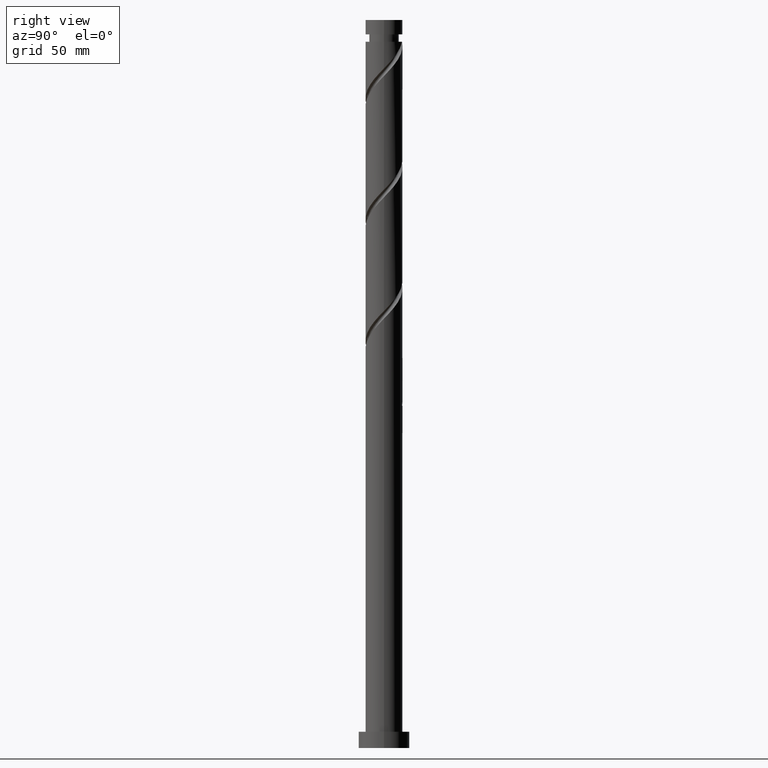
[diagram: clean part render]
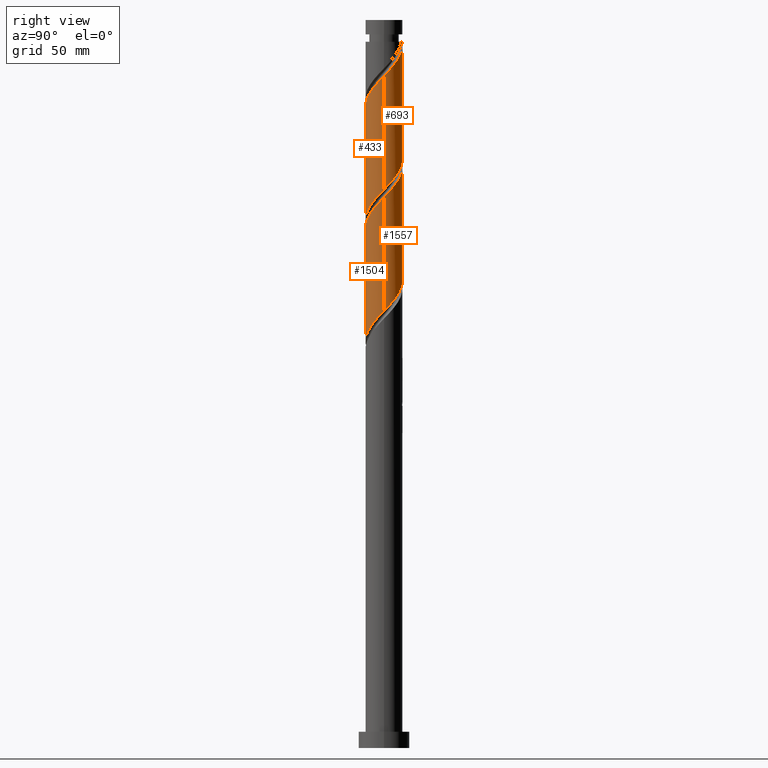
[diagram: same view with one multi-face feature highlighted, each face labeled with its STEP entity id]
A machine part, right view. The highlighted faces form ONE feature: a constant-radius fillet chain: 4 tangent blend faces with common blend radius 8 mm. The faces share edges in the B-rep.
Their STEP definitions:
[1] entity #1504 (Cylinder):
#32 = CARTESIAN_POINT ( 'NONE',  ( 8.000000000000012434, -1.567206219760254689E-15, 238.2947572153500744 ) ) ;
#54 = CARTESIAN_POINT ( 'NONE',  ( -4.835972842340986233, -6.372861733016056185, 170.5942742932561487 ) ) ;
#66 = CARTESIAN_POINT ( 'NONE',  ( 8.000000000000000000, 9.797174393178825657E-16, 315.0000000000000000 ) ) ;
#94 = FACE_OUTER_BOUND ( 'NONE', #1534, .T. ) ;
#107 = CARTESIAN_POINT ( 'NONE',  ( 6.711618193336562399, -4.445972725462998376, 233.4067742932561202 ) ) ;
#142 = CARTESIAN_POINT ( 'NONE',  ( -1.967324187022329918, -7.754330115693885084, 223.0942742932561771 ) ) ;
#146 = CARTESIAN_POINT ( 'NONE',  ( 0.000000000000000000, 0.000000000000000000, 315.0000000000000000 ) ) ;
#188 = CARTESIAN_POINT ( 'NONE',  ( 0.1924984826887007339, -7.997683685553119481, 176.2192742932561487 ) ) ;
#207 = CARTESIAN_POINT ( 'NONE',  ( -7.999999999999996447, -0.09626317733111060260, 162.9941540593872560 ) ) ;
#211 = VECTOR ( 'NONE', #1223, 1000.000000000000000 ) ;
#220 = LINE ( 'NONE', #66, #462 ) ;
#280 = CARTESIAN_POINT ( 'NONE',  ( -4.445972725462998376, -6.711618193336562399, 220.2817742932561487 ) ) ;
#281 = ORIENTED_EDGE ( 'NONE', *, *, #410, .F. ) ;
#320 = LINE ( 'NONE', #1484, #211 ) ;
#337 = CARTESIAN_POINT ( 'NONE',  ( 3.643500041788252375, -7.122142054571010128, 179.9692742932561771 ) ) ;
#348 = CARTESIAN_POINT ( 'NONE',  ( -3.296629761746307619, -7.289185977457871779, 172.4692742932561202 ) ) ;
#357 = CARTESIAN_POINT ( 'NONE',  ( -7.975994315582275007, -1.093621015931126372, 164.0317742932560918 ) ) ;
#410 = EDGE_CURVE ( 'NONE', #1915, #1749, #1872, .T. ) ;
#427 = CARTESIAN_POINT ( 'NONE',  ( -5.136975590527704583, -6.132820051356697277, 219.3442742932561771 ) ) ;
#446 = CARTESIAN_POINT ( 'NONE',  ( 8.000000000000012434, -1.567206219760254689E-15, 238.2947572153500744 ) ) ;
#455 =( BOUNDED_CURVE ( )  B_SPLINE_CURVE ( 2, ( #1416, #513, #812, #937, #783, #675, #1406, #1865, #1665, #1695, #337, #1240, #928, #1520, #188, #634, #1229, #1823, #348, #792, #54, #1396, #1834, #501, #946, #1093, #1684, #357, #1538, #207, #739 ),
 .UNSPECIFIED., .F., .T. ) 
 B_SPLINE_CURVE_WITH_KNOTS ( ( 3, 2, 2, 2, 2, 2, 2, 2, 2, 2, 2, 2, 2, 2, 2, 3 ),
 ( 0.8045303401299221946, 0.8125000000000000000, 0.8214285714285713969, 0.8303571428571429047, 0.8392857142857143016, 0.8482142857142856984, 0.8571428571428570953, 0.8660714285714286031, 0.8750000000000000000, 0.8839285714285713969, 0.8928571428571429047, 0.9017857142857143016, 0.9107142857142856984, 0.9196428571428570953, 0.9285714285714286031, 0.9295303401299221946 ),
 .UNSPECIFIED. ) 
 CURVE ( )  GEOMETRIC_REPRESENTATION_ITEM ( )  RATIONAL_B_SPLINE_CURVE ( ( 0.9079949616361914222, 0.9039886423360548040, 0.9090909090909213841, 0.9033747362665963676, 0.9090909090909213841, 0.9033747362665963676, 0.9090909090909213841, 0.9033747362665963676, 0.9090909090909213841, 0.9033747362665963676, 0.9090909090909213841, 0.9033747362665963676, 0.9090909090909213841, 0.9033747362665963676, 0.9090909090909213841, 0.9033747362665963676, 0.9090909090909213841, 0.9033747362665963676, 0.9090909090909213841, 0.9033747362665963676, 0.9090909090909213841, 0.9033747362665963676, 0.9090909090909213841, 0.9033747362665963676, 0.9090909090909213841, 0.9033747362665963676, 0.9090909090909213841, 0.9033747362665963676, 0.9090909090909213841, 0.9084770030214630587, 0.9079949616361914222 ) ) 
 REPRESENTATION_ITEM ( '' )  );
#462 = VECTOR ( 'NONE', #643, 1000.000000000000000 ) ;
#485 = CARTESIAN_POINT ( 'NONE',  ( 8.000000000000012434, -0.09626317733112546571, 238.1943945271249561 ) ) ;
#501 = CARTESIAN_POINT ( 'NONE',  ( -6.711618193336550853, -4.445972725462985942, 167.7817742932561202 ) ) ;
#513 = CARTESIAN_POINT ( 'NONE',  ( 7.999999999999994671, -0.8040302522073838887, 188.3055202921985369 ) ) ;
#554 = CARTESIAN_POINT ( 'NONE',  ( -8.000000000000012434, 3.432927909951034550E-16, 212.0447572153501028 ) ) ;
#563 = CARTESIAN_POINT ( 'NONE',  ( 7.532665915805486279, -2.841027358113529022, 235.2817742932561487 ) ) ;
#578 = CARTESIAN_POINT ( 'NONE',  ( 3.296629761746312060, -7.289185977457886878, 228.7192742932561202 ) ) ;
#593 = DIRECTION ( 'NONE',  ( -0.000000000000000000, -0.000000000000000000, -1.000000000000000000 ) ) ;
#600 = VERTEX_POINT ( 'NONE', #1639 ) ;
#610 = VERTEX_POINT ( 'NONE', #1667 ) ;
#618 = CARTESIAN_POINT ( 'NONE',  ( 7.997683685553133692, -0.1924984826887050360, 238.0942742932561487 ) ) ;
#634 = CARTESIAN_POINT ( 'NONE',  ( -0.7086240505537245715, -8.019373055523965732, 175.2817742932560918 ) ) ;
#636 = EDGE_CURVE ( 'NONE', #1915, #610, #320, .T. ) ;
#643 = DIRECTION ( 'NONE',  ( -0.000000000000000000, -0.000000000000000000, -1.000000000000000000 ) ) ;
#675 = CARTESIAN_POINT ( 'NONE',  ( 6.917745010439713127, -4.117923775305151857, 184.6567742932562055 ) ) ;
#701 = CARTESIAN_POINT ( 'NONE',  ( -6.917745010439726450, -4.117923775305157186, 216.5317742932562624 ) ) ;
#708 = CARTESIAN_POINT ( 'NONE',  ( 6.132820051356695501, -5.136975590527704583, 232.4692742932561487 ) ) ;
#719 = ORIENTED_EDGE ( 'NONE', *, *, #636, .T. ) ;
#734 = CARTESIAN_POINT ( 'NONE',  ( 4.117923775305156298, -6.917745010439726450, 229.6567742932561771 ) ) ;
#739 = CARTESIAN_POINT ( 'NONE',  ( -7.999999999999998224, 1.895573237233846972E-15, 162.8937913711621661 ) ) ;
#783 = CARTESIAN_POINT ( 'NONE',  ( 7.289185977457871779, -3.296629761746308507, 185.5942742932561202 ) ) ;
#792 = CARTESIAN_POINT ( 'NONE',  ( -4.117923775305151857, -6.917745010439714015, 171.5317742932561202 ) ) ;
#812 = CARTESIAN_POINT ( 'NONE',  ( 7.839999999999999858, -1.591979899370595364, 187.4692742932561771 ) ) ;
#871 = CARTESIAN_POINT ( 'NONE',  ( -7.660626944476046418, -2.475335748187467377, 214.6567742932561487 ) ) ;
#897 = CARTESIAN_POINT ( 'NONE',  ( -8.000000000000012434, 3.432927909951034550E-16, 212.0447572153501028 ) ) ;
#928 = CARTESIAN_POINT ( 'NONE',  ( 1.967324187022322812, -7.754330115693871761, 178.0942742932561771 ) ) ;
#930 = CARTESIAN_POINT ( 'NONE',  ( 7.975994315582287442, -1.093621015931131701, 237.1567742932561771 ) ) ;
#937 = CARTESIAN_POINT ( 'NONE',  ( 7.660626944476032207, -2.475335748187465601, 186.5317742932560350 ) ) ;
#946 = CARTESIAN_POINT ( 'NONE',  ( -7.122142054571010128, -3.643500041788253707, 166.8442742932561487 ) ) ;
#1006 = CARTESIAN_POINT ( 'NONE',  ( -7.289185977457886878, -3.296629761746312948, 215.5942742932562055 ) ) ;
#1029 = CYLINDRICAL_SURFACE ( 'NONE', #1798, 8.000000000000000000 ) ;
#1093 = CARTESIAN_POINT ( 'NONE',  ( -7.532665915805471180, -2.841027358113519696, 165.9067742932561771 ) ) ;
#1140 = CARTESIAN_POINT ( 'NONE',  ( -2.841027358113529022, -7.532665915805486279, 222.1567742932561771 ) ) ;
#1159 = CARTESIAN_POINT ( 'NONE',  ( 7.754330115693885084, -1.967324187022330140, 236.2192742932561487 ) ) ;
#1166 = CARTESIAN_POINT ( 'NONE',  ( -6.372861733016070396, -4.835972842340994227, 217.4692742932561202 ) ) ;
#1174 = CARTESIAN_POINT ( 'NONE',  ( 4.835972842340994227, -6.372861733016071284, 230.5942742932561487 ) ) ;
#1190 = DIRECTION ( 'NONE',  ( -1.000000000000000000, 0.000000000000000000, 0.000000000000000000 ) ) ;
#1223 = DIRECTION ( 'NONE',  ( -0.000000000000000000, -0.000000000000000000, -1.000000000000000000 ) ) ;
#1229 = CARTESIAN_POINT ( 'NONE',  ( -1.591979899370594920, -7.839999999999999858, 174.3442742932561202 ) ) ;
#1238 = EDGE_CURVE ( 'NONE', #1749, #600, #220, .T. ) ;
#1240 = CARTESIAN_POINT ( 'NONE',  ( 2.841027358113519696, -7.532665915805471180, 179.0317742932561487 ) ) ;
#1287 = EDGE_CURVE ( 'NONE', #600, #610, #455, .T. ) ;
#1301 = CARTESIAN_POINT ( 'NONE',  ( 7.122142054571023451, -3.643500041788263033, 234.3442742932561487 ) ) ;
#1396 = CARTESIAN_POINT ( 'NONE',  ( -5.554021909376823274, -5.827978455592401019, 169.6567742932561487 ) ) ;
#1406 = CARTESIAN_POINT ( 'NONE',  ( 6.372861733016056185, -4.835972842340986233, 183.7192742932560918 ) ) ;
#1416 = CARTESIAN_POINT ( 'NONE',  ( 7.999999999999998224, -2.820971195568480725E-15, 189.1437913711621377 ) ) ;
#1438 = CARTESIAN_POINT ( 'NONE',  ( 2.475335748187466489, -7.660626944476046418, 227.7817742932561202 ) ) ;
#1446 = CARTESIAN_POINT ( 'NONE',  ( 0.7086240505537224621, -8.019373055523979943, 225.9067742932562055 ) ) ;
#1474 = CARTESIAN_POINT ( 'NONE',  ( -8.000000000000012434, -0.8040302522073711211, 212.8830282943137036 ) ) ;
#1484 = CARTESIAN_POINT ( 'NONE',  ( -8.000000000000000000, 0.000000000000000000, 315.0000000000000000 ) ) ;
#1504 = ADVANCED_FACE ( 'NONE', ( #94 ), #1029, .T. ) ;
#1520 = CARTESIAN_POINT ( 'NONE',  ( 1.093621015931125706, -7.975994315582275007, 177.1567742932561487 ) ) ;
#1534 = EDGE_LOOP ( 'NONE', ( #1839, #281, #719, #1869 ) ) ;
#1538 = CARTESIAN_POINT ( 'NONE',  ( -7.997683685553119481, -0.1924984826887011502, 163.0942742932561487 ) ) ;
#1583 = CARTESIAN_POINT ( 'NONE',  ( -7.840000000000014069, -1.591979899370595142, 213.7192742932561771 ) ) ;
#1592 = CARTESIAN_POINT ( 'NONE',  ( -0.1924984826887041756, -7.997683685553133692, 224.9692742932561487 ) ) ;
#1639 = CARTESIAN_POINT ( 'NONE',  ( 7.999999999999998224, -2.820971195568480725E-15, 189.1437913711621661 ) ) ;
#1665 = CARTESIAN_POINT ( 'NONE',  ( 5.136975590527694813, -6.132820051356686619, 181.8442742932561202 ) ) ;
#1667 = CARTESIAN_POINT ( 'NONE',  ( -7.999999999999998224, 1.895573237233846972E-15, 162.8937913711621661 ) ) ;
#1684 = CARTESIAN_POINT ( 'NONE',  ( -7.754330115693871761, -1.967324187022322812, 164.9692742932561487 ) ) ;
#1695 = CARTESIAN_POINT ( 'NONE',  ( 4.445972725462985942, -6.711618193336553517, 180.9067742932561202 ) ) ;
#1739 = CARTESIAN_POINT ( 'NONE',  ( 1.591979899370594698, -7.840000000000014069, 226.8442742932562055 ) ) ;
#1749 = VERTEX_POINT ( 'NONE', #32 ) ;
#1755 = CARTESIAN_POINT ( 'NONE',  ( -5.827978455592415230, -5.554021909376832156, 218.4067742932560634 ) ) ;
#1763 = CARTESIAN_POINT ( 'NONE',  ( -3.643500041788262589, -7.122142054571023451, 221.2192742932561771 ) ) ;
#1798 = AXIS2_PLACEMENT_3D ( 'NONE', #146, #593, #1190 ) ;
#1823 = CARTESIAN_POINT ( 'NONE',  ( -2.475335748187465157, -7.660626944476032207, 173.4067742932561771 ) ) ;
#1834 = CARTESIAN_POINT ( 'NONE',  ( -6.132820051356685731, -5.136975590527694813, 168.7192742932561202 ) ) ;
#1839 = ORIENTED_EDGE ( 'NONE', *, *, #1238, .F. ) ;
#1865 = CARTESIAN_POINT ( 'NONE',  ( 5.827978455592401019, -5.554021909376823274, 182.7817742932561202 ) ) ;
#1869 = ORIENTED_EDGE ( 'NONE', *, *, #1287, .F. ) ;
#1872 =( BOUNDED_CURVE ( )  B_SPLINE_CURVE ( 2, ( #554, #1474, #1583, #871, #1006, #701, #1166, #1755, #427, #280, #1763, #1140, #142, #1914, #1592, #1446, #1739, #1438, #578, #734, #1174, #1879, #708, #107, #1301, #563, #1159, #930, #618, #485, #446 ),
 .UNSPECIFIED., .F., .T. ) 
 B_SPLINE_CURVE_WITH_KNOTS ( ( 3, 2, 2, 2, 2, 2, 2, 2, 2, 2, 2, 2, 2, 2, 2, 3 ),
 ( 0.3045303401299220836, 0.3125000000000000000, 0.3214285714285713969, 0.3303571428571429047, 0.3392857142857143016, 0.3482142857142856984, 0.3571428571428570953, 0.3660714285714286031, 0.3750000000000000000, 0.3839285714285713969, 0.3928571428571429047, 0.4017857142857143016, 0.4107142857142856984, 0.4196428571428570953, 0.4285714285714286031, 0.4295303401299220836 ),
 .UNSPECIFIED. ) 
 CURVE ( )  GEOMETRIC_REPRESENTATION_ITEM ( )  RATIONAL_B_SPLINE_CURVE ( ( 0.9079949616361987497, 0.9039886423360619094, 0.9090909090909286006, 0.9033747362666035841, 0.9090909090909286006, 0.9033747362666035841, 0.9090909090909286006, 0.9033747362666035841, 0.9090909090909286006, 0.9033747362666035841, 0.9090909090909286006, 0.9033747362666035841, 0.9090909090909286006, 0.9033747362666035841, 0.9090909090909286006, 0.9033747362666035841, 0.9090909090909286006, 0.9033747362666035841, 0.9090909090909286006, 0.9033747362666035841, 0.9090909090909286006, 0.9033747362666035841, 0.9090909090909286006, 0.9033747362666035841, 0.9090909090909286006, 0.9033747362666035841, 0.9090909090909286006, 0.9033747362666035841, 0.9090909090909286006, 0.9084770030214703862, 0.9079949616361987497 ) ) 
 REPRESENTATION_ITEM ( '' )  );
#1879 = CARTESIAN_POINT ( 'NONE',  ( 5.554021909376832156, -5.827978455592415230, 231.5317742932561771 ) ) ;
#1914 = CARTESIAN_POINT ( 'NONE',  ( -1.093621015931131257, -7.975994315582287442, 224.0317742932561487 ) ) ;
#1915 = VERTEX_POINT ( 'NONE', #897 ) ;
[2] entity #1557 (Cylinder):
#6 = EDGE_CURVE ( 'NONE', #579, #979, #502, .T. ) ;
#21 = CARTESIAN_POINT ( 'NONE',  ( 4.117923775305152745, 6.917745010439713127, 197.7817742932561771 ) ) ;
#32 = CARTESIAN_POINT ( 'NONE',  ( 8.000000000000012434, -1.567206219760254689E-15, 238.2947572153500744 ) ) ;
#66 = CARTESIAN_POINT ( 'NONE',  ( 8.000000000000000000, 9.797174393178825657E-16, 315.0000000000000000 ) ) ;
#97 = CARTESIAN_POINT ( 'NONE',  ( -0.7086240505537219070, 8.019373055523979943, 252.1567742932561202 ) ) ;
#106 = CARTESIAN_POINT ( 'NONE',  ( 7.289185977457886878, 3.296629761746312060, 241.8442742932561202 ) ) ;
#124 = CARTESIAN_POINT ( 'NONE',  ( 6.917745010439728226, 4.117923775305156298, 242.7817742932561771 ) ) ;
#220 = LINE ( 'NONE', #66, #462 ) ;
#259 = CARTESIAN_POINT ( 'NONE',  ( -4.835972842340994227, 6.372861733016070396, 256.8442742932562055 ) ) ;
#268 = CARTESIAN_POINT ( 'NONE',  ( 1.093621015931132368, 7.975994315582287442, 250.2817742932562055 ) ) ;
#288 = CARTESIAN_POINT ( 'NONE',  ( 6.711618193336551741, 4.445972725462985053, 194.0317742932561487 ) ) ;
#319 = CARTESIAN_POINT ( 'NONE',  ( -7.999999999999998224, 1.895573237233846972E-15, 215.3937913711621377 ) ) ;
#328 = CARTESIAN_POINT ( 'NONE',  ( -1.967324187022324145, 7.754330115693871761, 204.3442742932561202 ) ) ;
#399 = CARTESIAN_POINT ( 'NONE',  ( 3.643500041788263033, 7.122142054571023451, 247.4692742932561771 ) ) ;
#436 = CARTESIAN_POINT ( 'NONE',  ( -7.975994315582287442, 1.093621015931130813, 263.4067742932561487 ) ) ;
#462 = VECTOR ( 'NONE', #643, 1000.000000000000000 ) ;
#464 = CARTESIAN_POINT ( 'NONE',  ( 1.591979899370595808, 7.839999999999999858, 200.5942742932561202 ) ) ;
#472 = CARTESIAN_POINT ( 'NONE',  ( 7.532665915805471180, 2.841027358113518808, 192.1567742932561202 ) ) ;
#483 = CARTESIAN_POINT ( 'NONE',  ( 7.122142054571010128, 3.643500041788252375, 193.0942742932562055 ) ) ;
#502 = LINE ( 'NONE', #1666, #1638 ) ;
#537 = ORIENTED_EDGE ( 'NONE', *, *, #6, .F. ) ;
#544 = CARTESIAN_POINT ( 'NONE',  ( -8.000000000000012434, 1.537354672717202172E-15, 264.5447572153501596 ) ) ;
#556 = ORIENTED_EDGE ( 'NONE', *, *, #1238, .T. ) ;
#562 = CARTESIAN_POINT ( 'NONE',  ( -7.754330115693885972, 1.967324187022329030, 262.4692742932561487 ) ) ;
#569 = CARTESIAN_POINT ( 'NONE',  ( -6.132820051356697277, 5.136975590527704583, 258.7192742932561487 ) ) ;
#579 = VERTEX_POINT ( 'NONE', #1337 ) ;
#585 = AXIS2_PLACEMENT_3D ( 'NONE', #1340, #1717, #687 ) ;
#600 = VERTEX_POINT ( 'NONE', #1639 ) ;
#625 = CARTESIAN_POINT ( 'NONE',  ( -5.136975590527696589, 6.132820051356685731, 208.0942742932561202 ) ) ;
#643 = DIRECTION ( 'NONE',  ( -0.000000000000000000, -0.000000000000000000, -1.000000000000000000 ) ) ;
#687 = DIRECTION ( 'NONE',  ( -1.000000000000000000, 0.000000000000000000, 0.000000000000000000 ) ) ;
#689 = CARTESIAN_POINT ( 'NONE',  ( 1.967324187022330584, 7.754330115693885972, 249.3442742932562055 ) ) ;
#700 = CARTESIAN_POINT ( 'NONE',  ( -4.117923775305158074, 6.917745010439726450, 255.9067742932561487 ) ) ;
#707 = CARTESIAN_POINT ( 'NONE',  ( -3.296629761746312948, 7.289185977457886878, 254.9692742932561771 ) ) ;
#717 = CARTESIAN_POINT ( 'NONE',  ( 6.372861733016072172, 4.835972842340994227, 243.7192742932561202 ) ) ;
#761 = CARTESIAN_POINT ( 'NONE',  ( -7.999999999999994671, 0.8040302522073827785, 214.5555202921985938 ) ) ;
#772 = CARTESIAN_POINT ( 'NONE',  ( -1.093621015931127038, 7.975994315582275007, 203.4067742932561487 ) ) ;
#833 = CARTESIAN_POINT ( 'NONE',  ( 7.660626944476046418, 2.475335748187466489, 240.9067742932561771 ) ) ;
#853 = CARTESIAN_POINT ( 'NONE',  ( -5.554021909376833932, 5.827978455592415230, 257.7817742932562055 ) ) ;
#878 = CARTESIAN_POINT ( 'NONE',  ( 4.835972842340988009, 6.372861733016056185, 196.8442742932561202 ) ) ;
#900 = CARTESIAN_POINT ( 'NONE',  ( -6.917745010439714015, 4.117923775305150080, 210.9067742932561202 ) ) ;
#909 = CARTESIAN_POINT ( 'NONE',  ( 2.475335748187466489, 7.660626944476032207, 199.6567742932561202 ) ) ;
#917 = CARTESIAN_POINT ( 'NONE',  ( 3.296629761746308951, 7.289185977457870891, 198.7192742932560918 ) ) ;
#979 = VERTEX_POINT ( 'NONE', #1005 ) ;
#1005 = CARTESIAN_POINT ( 'NONE',  ( -7.999999999999998224, 1.895573237233846972E-15, 215.3937913711621377 ) ) ;
#1009 = EDGE_CURVE ( 'NONE', #1749, #579, #1372, .T. ) ;
#1024 = CARTESIAN_POINT ( 'NONE',  ( -7.532665915805486279, 2.841027358113528578, 261.5317742932561487 ) ) ;
#1035 = CARTESIAN_POINT ( 'NONE',  ( 7.999999999999996447, 0.09626317733110972830, 189.2441540593872560 ) ) ;
#1044 = CARTESIAN_POINT ( 'NONE',  ( -2.841027358113521029, 7.532665915805471180, 205.2817742932561487 ) ) ;
#1055 = CARTESIAN_POINT ( 'NONE',  ( 5.554021909376823274, 5.827978455592400131, 195.9067742932561487 ) ) ;
#1058 = EDGE_CURVE ( 'NONE', #979, #600, #1300, .T. ) ;
#1064 = CARTESIAN_POINT ( 'NONE',  ( 7.999999999999998224, -2.820971195568480725E-15, 189.1437913711621377 ) ) ;
#1136 = FACE_OUTER_BOUND ( 'NONE', #1701, .T. ) ;
#1138 = CARTESIAN_POINT ( 'NONE',  ( -1.591979899370594032, 7.840000000000014069, 253.0942742932562055 ) ) ;
#1158 = CARTESIAN_POINT ( 'NONE',  ( 5.827978455592415230, 5.554021909376831267, 244.6567742932561487 ) ) ;
#1173 = CARTESIAN_POINT ( 'NONE',  ( 2.841027358113530799, 7.532665915805486279, 248.4067742932561487 ) ) ;
#1185 = CARTESIAN_POINT ( 'NONE',  ( -7.289185977457871779, 3.296629761746307619, 211.8442742932561487 ) ) ;
#1194 = CARTESIAN_POINT ( 'NONE',  ( -7.660626944476032207, 2.475335748187464713, 212.7817742932561487 ) ) ;
#1220 = CARTESIAN_POINT ( 'NONE',  ( 6.132820051356686619, 5.136975590527694813, 194.9692742932561487 ) ) ;
#1238 = EDGE_CURVE ( 'NONE', #1749, #600, #220, .T. ) ;
#1254 = ORIENTED_EDGE ( 'NONE', *, *, #1058, .F. ) ;
#1281 = CARTESIAN_POINT ( 'NONE',  ( 0.1924984826887057021, 7.997683685553133692, 251.2192742932561771 ) ) ;
#1290 = CARTESIAN_POINT ( 'NONE',  ( -7.997683685553133692, 0.1924984826887037315, 264.3442742932562624 ) ) ;
#1300 =( BOUNDED_CURVE ( )  B_SPLINE_CURVE ( 2, ( #319, #761, #1510, #1194, #1185, #900, #1345, #1365, #625, #1796, #1473, #1044, #328, #772, #1806, #1627, #464, #909, #917, #21, #878, #1055, #1220, #288, #483, #472, #1336, #1502, #1618, #1035, #1064 ),
 .UNSPECIFIED., .F., .T. ) 
 B_SPLINE_CURVE_WITH_KNOTS ( ( 3, 2, 2, 2, 2, 2, 2, 2, 2, 2, 2, 2, 2, 2, 2, 3 ),
 ( 0.6795303401299221946, 0.6875000000000000000, 0.6964285714285713969, 0.7053571428571429047, 0.7142857142857143016, 0.7232142857142856984, 0.7321428571428570953, 0.7410714285714286031, 0.7500000000000000000, 0.7589285714285713969, 0.7678571428571429047, 0.7767857142857143016, 0.7857142857142856984, 0.7946428571428570953, 0.8035714285714286031, 0.8045303401299221946 ),
 .UNSPECIFIED. ) 
 CURVE ( )  GEOMETRIC_REPRESENTATION_ITEM ( )  RATIONAL_B_SPLINE_CURVE ( ( 0.9079949616361914222, 0.9039886423360548040, 0.9090909090909213841, 0.9033747362665963676, 0.9090909090909213841, 0.9033747362665963676, 0.9090909090909213841, 0.9033747362665963676, 0.9090909090909213841, 0.9033747362665963676, 0.9090909090909213841, 0.9033747362665963676, 0.9090909090909213841, 0.9033747362665963676, 0.9090909090909213841, 0.9033747362665963676, 0.9090909090909213841, 0.9033747362665963676, 0.9090909090909213841, 0.9033747362665963676, 0.9090909090909213841, 0.9033747362665963676, 0.9090909090909213841, 0.9033747362665963676, 0.9090909090909213841, 0.9033747362665963676, 0.9090909090909213841, 0.9033747362665963676, 0.9090909090909213841, 0.9084770030214630587, 0.9079949616361914222 ) ) 
 REPRESENTATION_ITEM ( '' )  );
#1316 = CARTESIAN_POINT ( 'NONE',  ( 8.000000000000012434, -1.567206219760254689E-15, 238.2947572153500744 ) ) ;
#1336 = CARTESIAN_POINT ( 'NONE',  ( 7.754330115693871761, 1.967324187022321924, 191.2192742932561771 ) ) ;
#1337 = CARTESIAN_POINT ( 'NONE',  ( -8.000000000000012434, 1.537354672717202172E-15, 264.5447572153501596 ) ) ;
#1340 = CARTESIAN_POINT ( 'NONE',  ( 0.000000000000000000, 0.000000000000000000, 315.0000000000000000 ) ) ;
#1345 = CARTESIAN_POINT ( 'NONE',  ( -6.372861733016056185, 4.835972842340986233, 209.9692742932560634 ) ) ;
#1365 = CARTESIAN_POINT ( 'NONE',  ( -5.827978455592401019, 5.554021909376823274, 209.0317742932561771 ) ) ;
#1372 =( BOUNDED_CURVE ( )  B_SPLINE_CURVE ( 2, ( #1316, #1738, #1455, #833, #106, #124, #717, #1158, #1591, #1437, #399, #1173, #689, #268, #1281, #97, #1138, #1904, #707, #700, #259, #853, #569, #1761, #1600, #1024, #562, #436, #1290, #1582, #544 ),
 .UNSPECIFIED., .F., .T. ) 
 B_SPLINE_CURVE_WITH_KNOTS ( ( 3, 2, 2, 2, 2, 2, 2, 2, 2, 2, 2, 2, 2, 2, 2, 3 ),
 ( 0.4295303401299220836, 0.4375000000000000000, 0.4464285714285713969, 0.4553571428571429047, 0.4642857142857143016, 0.4732142857142856984, 0.4821428571428570953, 0.4910714285714286031, 0.5000000000000000000, 0.5089285714285713969, 0.5178571428571427937, 0.5267857142857143016, 0.5357142857142856984, 0.5446428571428572063, 0.5535714285714286031, 0.5545303401299220836 ),
 .UNSPECIFIED. ) 
 CURVE ( )  GEOMETRIC_REPRESENTATION_ITEM ( )  RATIONAL_B_SPLINE_CURVE ( ( 0.9079949616361987497, 0.9039886423360619094, 0.9090909090909286006, 0.9033747362666035841, 0.9090909090909286006, 0.9033747362666035841, 0.9090909090909286006, 0.9033747362666035841, 0.9090909090909286006, 0.9033747362666035841, 0.9090909090909286006, 0.9033747362666035841, 0.9090909090909286006, 0.9033747362666035841, 0.9090909090909286006, 0.9033747362666035841, 0.9090909090909286006, 0.9033747362666035841, 0.9090909090909286006, 0.9033747362666035841, 0.9090909090909286006, 0.9033747362666035841, 0.9090909090909286006, 0.9033747362666035841, 0.9090909090909286006, 0.9033747362666035841, 0.9090909090909286006, 0.9033747362666035841, 0.9090909090909286006, 0.9084770030214703862, 0.9079949616361987497 ) ) 
 REPRESENTATION_ITEM ( '' )  );
#1437 = CARTESIAN_POINT ( 'NONE',  ( 4.445972725462999264, 6.711618193336562399, 246.5317742932561771 ) ) ;
#1455 = CARTESIAN_POINT ( 'NONE',  ( 7.840000000000014069, 1.591979899370594476, 239.9692742932561487 ) ) ;
#1473 = CARTESIAN_POINT ( 'NONE',  ( -3.643500041788253707, 7.122142054571010128, 206.2192742932561487 ) ) ;
#1502 = CARTESIAN_POINT ( 'NONE',  ( 7.975994315582275007, 1.093621015931125262, 190.2817742932561487 ) ) ;
#1510 = CARTESIAN_POINT ( 'NONE',  ( -7.839999999999999858, 1.591979899370594476, 213.7192742932561202 ) ) ;
#1557 = ADVANCED_FACE ( 'NONE', ( #1136 ), #1726, .T. ) ;
#1582 = CARTESIAN_POINT ( 'NONE',  ( -8.000000000000012434, 0.09626317733112421671, 264.4443945271250413 ) ) ;
#1591 = CARTESIAN_POINT ( 'NONE',  ( 5.136975590527704583, 6.132820051356695501, 245.5942742932561771 ) ) ;
#1600 = CARTESIAN_POINT ( 'NONE',  ( -7.122142054571023451, 3.643500041788262589, 260.5942742932561487 ) ) ;
#1618 = CARTESIAN_POINT ( 'NONE',  ( 7.997683685553119481, 0.1924984826887002620, 189.3442742932561202 ) ) ;
#1627 = CARTESIAN_POINT ( 'NONE',  ( 0.7086240505537235723, 8.019373055523965732, 201.5317742932561487 ) ) ;
#1638 = VECTOR ( 'NONE', #1845, 1000.000000000000000 ) ;
#1639 = CARTESIAN_POINT ( 'NONE',  ( 7.999999999999998224, -2.820971195568480725E-15, 189.1437913711621661 ) ) ;
#1666 = CARTESIAN_POINT ( 'NONE',  ( -8.000000000000000000, 0.000000000000000000, 315.0000000000000000 ) ) ;
#1680 = ORIENTED_EDGE ( 'NONE', *, *, #1009, .F. ) ;
#1701 = EDGE_LOOP ( 'NONE', ( #1680, #556, #1254, #537 ) ) ;
#1717 = DIRECTION ( 'NONE',  ( -0.000000000000000000, -0.000000000000000000, -1.000000000000000000 ) ) ;
#1726 = CYLINDRICAL_SURFACE ( 'NONE', #585, 8.000000000000000000 ) ;
#1738 = CARTESIAN_POINT ( 'NONE',  ( 8.000000000000012434, 0.8040302522073703440, 239.1330282943137036 ) ) ;
#1749 = VERTEX_POINT ( 'NONE', #32 ) ;
#1761 = CARTESIAN_POINT ( 'NONE',  ( -6.711618193336565064, 4.445972725462997488, 259.6567742932561487 ) ) ;
#1796 = CARTESIAN_POINT ( 'NONE',  ( -4.445972725462986830, 6.711618193336551741, 207.1567742932560634 ) ) ;
#1806 = CARTESIAN_POINT ( 'NONE',  ( -0.1924984826887015665, 7.997683685553119481, 202.4692742932560918 ) ) ;
#1845 = DIRECTION ( 'NONE',  ( -0.000000000000000000, -0.000000000000000000, -1.000000000000000000 ) ) ;
#1904 = CARTESIAN_POINT ( 'NONE',  ( -2.475335748187468266, 7.660626944476046418, 254.0317742932561487 ) ) ;
[3] entity #433 (Cylinder):
#6 = EDGE_CURVE ( 'NONE', #579, #979, #502, .T. ) ;
#15 = CARTESIAN_POINT ( 'NONE',  ( -7.660626944476046418, -2.475335748187467377, 267.1567742932561487 ) ) ;
#24 = CARTESIAN_POINT ( 'NONE',  ( 6.132820051356695501, -5.136975590527704583, 284.9692742932560918 ) ) ;
#48 = CARTESIAN_POINT ( 'NONE',  ( 3.643500041788252375, -7.122142054571010128, 232.4692742932561771 ) ) ;
#56 = CARTESIAN_POINT ( 'NONE',  ( 4.445972725462985942, -6.711618193336553517, 233.4067742932560918 ) ) ;
#70 = ORIENTED_EDGE ( 'NONE', *, *, #1833, .F. ) ;
#77 = CARTESIAN_POINT ( 'NONE',  ( 6.917745010439713127, -4.117923775305151857, 237.1567742932561202 ) ) ;
#79 = VERTEX_POINT ( 'NONE', #773 ) ;
#134 = VERTEX_POINT ( 'NONE', #1282 ) ;
#163 = CARTESIAN_POINT ( 'NONE',  ( 7.997683685553133692, -0.1924984826887050360, 290.5942742932560918 ) ) ;
#172 = CARTESIAN_POINT ( 'NONE',  ( 4.835972842340994227, -6.372861733016071284, 283.0942742932561487 ) ) ;
#181 = CYLINDRICAL_SURFACE ( 'NONE', #1454, 8.000000000000000000 ) ;
#202 = CARTESIAN_POINT ( 'NONE',  ( 4.117923775305156298, -6.917745010439726450, 282.1567742932562624 ) ) ;
#215 = ORIENTED_EDGE ( 'NONE', *, *, #716, .F. ) ;
#313 = CARTESIAN_POINT ( 'NONE',  ( 5.554021909376832156, -5.827978455592415230, 284.0317742932560918 ) ) ;
#322 = CARTESIAN_POINT ( 'NONE',  ( -8.000000000000012434, 1.537354672717202172E-15, 264.5447572153501596 ) ) ;
#381 = CARTESIAN_POINT ( 'NONE',  ( -7.532665915805471180, -2.841027358113519696, 218.4067742932560918 ) ) ;
#390 = CARTESIAN_POINT ( 'NONE',  ( -7.997683685553119481, -0.1924984826887011502, 215.5942742932561202 ) ) ;
#433 = ADVANCED_FACE ( 'NONE', ( #1195 ), #181, .T. ) ;
#459 = CARTESIAN_POINT ( 'NONE',  ( 3.296629761746312060, -7.289185977457886878, 281.2192742932561487 ) ) ;
#494 = CARTESIAN_POINT ( 'NONE',  ( 7.839999999999999858, -1.591979899370595364, 239.9692742932561202 ) ) ;
#496 = CARTESIAN_POINT ( 'NONE',  ( -2.841027358113529022, -7.532665915805486279, 274.6567742932562055 ) ) ;
#502 = LINE ( 'NONE', #1666, #1638 ) ;
#504 = CARTESIAN_POINT ( 'NONE',  ( -6.711618193336550853, -4.445972725462985942, 220.2817742932561487 ) ) ;
#579 = VERTEX_POINT ( 'NONE', #1337 ) ;
#609 = CARTESIAN_POINT ( 'NONE',  ( 6.711618193336562399, -4.445972725462998376, 285.9067742932560918 ) ) ;
#637 = CARTESIAN_POINT ( 'NONE',  ( 7.660626944476032207, -2.475335748187465601, 239.0317742932561202 ) ) ;
#646 = CARTESIAN_POINT ( 'NONE',  ( 2.841027358113519696, -7.532665915805471180, 231.5317742932561202 ) ) ;
#649 = ORIENTED_EDGE ( 'NONE', *, *, #1700, .F. ) ;
#656 = CARTESIAN_POINT ( 'NONE',  ( 6.372861733016056185, -4.835972842340986233, 236.2192742932561487 ) ) ;
#667 = CARTESIAN_POINT ( 'NONE',  ( -1.591979899370594920, -7.839999999999999858, 226.8442742932560918 ) ) ;
#716 = EDGE_CURVE ( 'NONE', #134, #979, #1697, .T. ) ;
#755 = CARTESIAN_POINT ( 'NONE',  ( -5.827978455592415230, -5.554021909376832156, 270.9067742932561487 ) ) ;
#764 = CARTESIAN_POINT ( 'NONE',  ( 2.475335748187466489, -7.660626944476046418, 280.2817742932562055 ) ) ;
#773 = CARTESIAN_POINT ( 'NONE',  ( 8.000000000000012434, -2.761268101482353603E-15, 290.7947572153501028 ) ) ;
#796 = CARTESIAN_POINT ( 'NONE',  ( 7.122142054571023451, -3.643500041788263033, 286.8442742932562624 ) ) ;
#805 = CARTESIAN_POINT ( 'NONE',  ( 5.136975590527694813, -6.132820051356686619, 234.3442742932561771 ) ) ;
#814 = CARTESIAN_POINT ( 'NONE',  ( 8.000000000000000000, -0.8040302522073617952, 240.8055202921985654 ) ) ;
#823 = CARTESIAN_POINT ( 'NONE',  ( -4.117923775305151857, -6.917745010439714015, 224.0317742932560918 ) ) ;
#903 = CARTESIAN_POINT ( 'NONE',  ( 7.532665915805486279, -2.841027358113529022, 287.7817742932562624 ) ) ;
#912 = CARTESIAN_POINT ( 'NONE',  ( -5.136975590527704583, -6.132820051356697277, 271.8442742932562055 ) ) ;
#921 = CARTESIAN_POINT ( 'NONE',  ( -7.840000000000014069, -1.591979899370595142, 266.2192742932561487 ) ) ;
#932 = CARTESIAN_POINT ( 'NONE',  ( 7.975994315582287442, -1.093621015931131701, 289.6567742932561487 ) ) ;
#941 = CARTESIAN_POINT ( 'NONE',  ( -4.445972725462998376, -6.711618193336562399, 272.7817742932560918 ) ) ;
#959 = CARTESIAN_POINT ( 'NONE',  ( -0.7086240505537245715, -8.019373055523965732, 227.7817742932561202 ) ) ;
#979 = VERTEX_POINT ( 'NONE', #1005 ) ;
#1005 = CARTESIAN_POINT ( 'NONE',  ( -7.999999999999998224, 1.895573237233846972E-15, 215.3937913711621377 ) ) ;
#1012 = CARTESIAN_POINT ( 'NONE',  ( 8.000000000000000000, 9.797174393178825657E-16, 315.0000000000000000 ) ) ;
#1086 = CARTESIAN_POINT ( 'NONE',  ( -3.296629761746307619, -7.289185977457871779, 224.9692742932561487 ) ) ;
#1088 = CARTESIAN_POINT ( 'NONE',  ( -8.000000000000012434, -0.8040302522073711211, 265.3830282943137036 ) ) ;
#1106 = CARTESIAN_POINT ( 'NONE',  ( -6.132820051356685731, -5.136975590527694813, 221.2192742932561487 ) ) ;
#1118 = CARTESIAN_POINT ( 'NONE',  ( -4.835972842340986233, -6.372861733016056185, 223.0942742932561202 ) ) ;
#1128 = CARTESIAN_POINT ( 'NONE',  ( -7.975994315582275007, -1.093621015931126372, 216.5317742932561487 ) ) ;
#1192 = LINE ( 'NONE', #1012, #1762 ) ;
#1195 = FACE_OUTER_BOUND ( 'NONE', #1411, .T. ) ;
#1198 = CARTESIAN_POINT ( 'NONE',  ( -6.917745010439726450, -4.117923775305157186, 269.0317742932562624 ) ) ;
#1214 = DIRECTION ( 'NONE',  ( -0.000000000000000000, -0.000000000000000000, -1.000000000000000000 ) ) ;
#1216 = CARTESIAN_POINT ( 'NONE',  ( -1.967324187022329918, -7.754330115693885084, 275.5942742932560918 ) ) ;
#1225 = CARTESIAN_POINT ( 'NONE',  ( 1.591979899370594698, -7.840000000000014069, 279.3442742932562624 ) ) ;
#1231 = CARTESIAN_POINT ( 'NONE',  ( 7.999999999999998224, -2.820971195568480331E-15, 241.6437913711621377 ) ) ;
#1233 = CARTESIAN_POINT ( 'NONE',  ( -1.093621015931131257, -7.975994315582287442, 276.5317742932562055 ) ) ;
#1242 = CARTESIAN_POINT ( 'NONE',  ( 5.827978455592401019, -5.554021909376823274, 235.2817742932560918 ) ) ;
#1261 = CARTESIAN_POINT ( 'NONE',  ( -7.122142054571010128, -3.643500041788253707, 219.3442742932562055 ) ) ;
#1272 = CARTESIAN_POINT ( 'NONE',  ( 0.1924984826887007339, -7.997683685553119481, 228.7192742932560918 ) ) ;
#1282 = CARTESIAN_POINT ( 'NONE',  ( 7.999999999999998224, -2.820971195568480725E-15, 241.6437913711621661 ) ) ;
#1306 = DIRECTION ( 'NONE',  ( -0.000000000000000000, -0.000000000000000000, -1.000000000000000000 ) ) ;
#1337 = CARTESIAN_POINT ( 'NONE',  ( -8.000000000000012434, 1.537354672717202172E-15, 264.5447572153501596 ) ) ;
#1348 = CARTESIAN_POINT ( 'NONE',  ( 8.000000000000012434, -2.761268101482353603E-15, 290.7947572153501028 ) ) ;
#1378 = CARTESIAN_POINT ( 'NONE',  ( -0.1924984826887041756, -7.997683685553133692, 277.4692742932561487 ) ) ;
#1408 = CARTESIAN_POINT ( 'NONE',  ( 1.967324187022322812, -7.754330115693871761, 230.5942742932561202 ) ) ;
#1411 = EDGE_LOOP ( 'NONE', ( #70, #649, #1801, #215 ) ) ;
#1454 = AXIS2_PLACEMENT_3D ( 'NONE', #1628, #1214, #1503 ) ;
#1497 = CARTESIAN_POINT ( 'NONE',  ( 7.754330115693885084, -1.967324187022330140, 288.7192742932560918 ) ) ;
#1503 = DIRECTION ( 'NONE',  ( -1.000000000000000000, 0.000000000000000000, 0.000000000000000000 ) ) ;
#1515 = CARTESIAN_POINT ( 'NONE',  ( 8.000000000000012434, -0.09626317733112546571, 290.6943945271249277 ) ) ;
#1533 = CARTESIAN_POINT ( 'NONE',  ( -6.372861733016070396, -4.835972842340994227, 269.9692742932562055 ) ) ;
#1551 = CARTESIAN_POINT ( 'NONE',  ( -7.754330115693871761, -1.967324187022322812, 217.4692742932561202 ) ) ;
#1628 = CARTESIAN_POINT ( 'NONE',  ( 0.000000000000000000, 0.000000000000000000, 315.0000000000000000 ) ) ;
#1638 = VECTOR ( 'NONE', #1845, 1000.000000000000000 ) ;
#1651 = CARTESIAN_POINT ( 'NONE',  ( 0.7086240505537224621, -8.019373055523979943, 278.4067742932561487 ) ) ;
#1666 = CARTESIAN_POINT ( 'NONE',  ( -8.000000000000000000, 0.000000000000000000, 315.0000000000000000 ) ) ;
#1669 = CARTESIAN_POINT ( 'NONE',  ( -3.643500041788262589, -7.122142054571023451, 273.7192742932561487 ) ) ;
#1677 = CARTESIAN_POINT ( 'NONE',  ( 7.289185977457871779, -3.296629761746308507, 238.0942742932561202 ) ) ;
#1697 =( BOUNDED_CURVE ( )  B_SPLINE_CURVE ( 2, ( #1231, #814, #494, #637, #1677, #77, #656, #1242, #805, #56, #48, #646, #1408, #1719, #1272, #959, #667, #1836, #1086, #823, #1118, #1710, #1106, #504, #1261, #381, #1551, #1128, #390, #1856, #1867 ),
 .UNSPECIFIED., .F., .T. ) 
 B_SPLINE_CURVE_WITH_KNOTS ( ( 3, 2, 2, 2, 2, 2, 2, 2, 2, 2, 2, 2, 2, 2, 2, 3 ),
 ( 0.5545303401299219725, 0.5625000000000000000, 0.5714285714285713969, 0.5803571428571429047, 0.5892857142857143016, 0.5982142857142856984, 0.6071428571428570953, 0.6160714285714286031, 0.6250000000000000000, 0.6339285714285713969, 0.6428571428571429047, 0.6517857142857143016, 0.6607142857142856984, 0.6696428571428570953, 0.6785714285714286031, 0.6795303401299221946 ),
 .UNSPECIFIED. ) 
 CURVE ( )  GEOMETRIC_REPRESENTATION_ITEM ( )  RATIONAL_B_SPLINE_CURVE ( ( 0.9079949616361915332, 0.9039886423360545820, 0.9090909090909213841, 0.9033747362665963676, 0.9090909090909213841, 0.9033747362665963676, 0.9090909090909213841, 0.9033747362665963676, 0.9090909090909213841, 0.9033747362665963676, 0.9090909090909213841, 0.9033747362665963676, 0.9090909090909213841, 0.9033747362665963676, 0.9090909090909213841, 0.9033747362665963676, 0.9090909090909213841, 0.9033747362665963676, 0.9090909090909213841, 0.9033747362665963676, 0.9090909090909213841, 0.9033747362665963676, 0.9090909090909213841, 0.9033747362665963676, 0.9090909090909213841, 0.9033747362665963676, 0.9090909090909213841, 0.9033747362665963676, 0.9090909090909213841, 0.9084770030214630587, 0.9079949616361914222 ) ) 
 REPRESENTATION_ITEM ( '' )  );
#1700 = EDGE_CURVE ( 'NONE', #579, #79, #1768, .T. ) ;
#1710 = CARTESIAN_POINT ( 'NONE',  ( -5.554021909376823274, -5.827978455592401019, 222.1567742932561202 ) ) ;
#1719 = CARTESIAN_POINT ( 'NONE',  ( 1.093621015931125706, -7.975994315582275007, 229.6567742932560918 ) ) ;
#1762 = VECTOR ( 'NONE', #1306, 1000.000000000000000 ) ;
#1768 =( BOUNDED_CURVE ( )  B_SPLINE_CURVE ( 2, ( #322, #1088, #921, #15, #1800, #1198, #1533, #755, #912, #941, #1669, #496, #1216, #1233, #1378, #1651, #1225, #764, #459, #202, #172, #313, #24, #609, #796, #903, #1497, #932, #163, #1515, #1348 ),
 .UNSPECIFIED., .F., .T. ) 
 B_SPLINE_CURVE_WITH_KNOTS ( ( 3, 2, 2, 2, 2, 2, 2, 2, 2, 2, 2, 2, 2, 2, 2, 3 ),
 ( 0.5545303401299220836, 0.5625000000000000000, 0.5714285714285713969, 0.5803571428571427937, 0.5892857142857143016, 0.5982142857142856984, 0.6071428571428572063, 0.6160714285714286031, 0.6250000000000000000, 0.6339285714285713969, 0.6428571428571427937, 0.6517857142857143016, 0.6607142857142856984, 0.6696428571428572063, 0.6785714285714286031, 0.6795303401299220836 ),
 .UNSPECIFIED. ) 
 CURVE ( )  GEOMETRIC_REPRESENTATION_ITEM ( )  RATIONAL_B_SPLINE_CURVE ( ( 0.9079949616361987497, 0.9039886423360619094, 0.9090909090909286006, 0.9033747362666035841, 0.9090909090909286006, 0.9033747362666035841, 0.9090909090909286006, 0.9033747362666035841, 0.9090909090909286006, 0.9033747362666035841, 0.9090909090909286006, 0.9033747362666035841, 0.9090909090909286006, 0.9033747362666035841, 0.9090909090909286006, 0.9033747362666035841, 0.9090909090909286006, 0.9033747362666035841, 0.9090909090909286006, 0.9033747362666035841, 0.9090909090909286006, 0.9033747362666035841, 0.9090909090909286006, 0.9033747362666035841, 0.9090909090909286006, 0.9033747362666035841, 0.9090909090909286006, 0.9033747362666035841, 0.9090909090909286006, 0.9084770030214703862, 0.9079949616361987497 ) ) 
 REPRESENTATION_ITEM ( '' )  );
#1800 = CARTESIAN_POINT ( 'NONE',  ( -7.289185977457886878, -3.296629761746312948, 268.0942742932562055 ) ) ;
#1801 = ORIENTED_EDGE ( 'NONE', *, *, #6, .T. ) ;
#1833 = EDGE_CURVE ( 'NONE', #79, #134, #1192, .T. ) ;
#1836 = CARTESIAN_POINT ( 'NONE',  ( -2.475335748187465157, -7.660626944476032207, 225.9067742932560918 ) ) ;
#1845 = DIRECTION ( 'NONE',  ( -0.000000000000000000, -0.000000000000000000, -1.000000000000000000 ) ) ;
#1856 = CARTESIAN_POINT ( 'NONE',  ( -7.999999999999996447, -0.09626317733111060260, 215.4941540593871991 ) ) ;
#1867 = CARTESIAN_POINT ( 'NONE',  ( -7.999999999999998224, 1.895573237233846972E-15, 215.3937913711621377 ) ) ;
[4] entity #693 (Cylinder):
#58 = CARTESIAN_POINT ( 'NONE',  ( 5.136975590527704583, 6.132820051356695501, 298.0942742932561487 ) ) ;
#79 = VERTEX_POINT ( 'NONE', #773 ) ;
#95 = EDGE_CURVE ( 'NONE', #79, #1070, #1606, .T. ) ;
#98 = CARTESIAN_POINT ( 'NONE',  ( 3.643500041788263033, 7.122142054571023451, 299.9692742932561487 ) ) ;
#114 = CARTESIAN_POINT ( 'NONE',  ( -0.1924984826887015665, 7.997683685553119481, 254.9692742932560918 ) ) ;
#118 = AXIS2_PLACEMENT_3D ( 'NONE', #1386, #977, #1825 ) ;
#134 = VERTEX_POINT ( 'NONE', #1282 ) ;
#141 = CARTESIAN_POINT ( 'NONE',  ( -1.591979899370560281, 7.840000000000014957, 305.5942742932559781 ) ) ;
#149 = AXIS2_PLACEMENT_3D ( 'NONE', #1308, #1913, #418 ) ;
#199 = FACE_OUTER_BOUND ( 'NONE', #373, .T. ) ;
#213 = CARTESIAN_POINT ( 'NONE',  ( 2.841027358113530799, 7.532665915805486279, 300.9067742932562055 ) ) ;
#260 = CARTESIAN_POINT ( 'NONE',  ( 3.296629761746308951, 7.289185977457870891, 251.2192742932561202 ) ) ;
#270 = CARTESIAN_POINT ( 'NONE',  ( -1.967324187022324145, 7.754330115693871761, 256.8442742932561487 ) ) ;
#289 = CARTESIAN_POINT ( 'NONE',  ( 0.7086240505537235723, 8.019373055523965732, 254.0317742932560066 ) ) ;
#323 = VERTEX_POINT ( 'NONE', #657 ) ;
#373 = EDGE_LOOP ( 'NONE', ( #702, #765, #961, #797, #420 ) ) ;
#375 = EDGE_CURVE ( 'NONE', #1620, #134, #477, .T. ) ;
#391 = CARTESIAN_POINT ( 'NONE',  ( -0.7086240505537556578, 8.019373055523981719, 304.6567742932561487 ) ) ;
#400 = CARTESIAN_POINT ( 'NONE',  ( -7.289185977457871779, 3.296629761746307619, 264.3442742932560918 ) ) ;
#411 = CARTESIAN_POINT ( 'NONE',  ( -5.827978455592401019, 5.554021909376823274, 261.5317742932560918 ) ) ;
#418 = DIRECTION ( 'NONE',  ( -1.000000000000000000, 0.000000000000000000, 0.000000000000000000 ) ) ;
#419 = CARTESIAN_POINT ( 'NONE',  ( 6.711618193336551741, 4.445972725462985053, 246.5317742932561487 ) ) ;
#420 = ORIENTED_EDGE ( 'NONE', *, *, #922, .T. ) ;
#437 = CARTESIAN_POINT ( 'NONE',  ( 5.554021909376823274, 5.827978455592400131, 248.4067742932560918 ) ) ;
#477 =( BOUNDED_CURVE ( )  B_SPLINE_CURVE ( 2, ( #1601, #1151, #1309, #1747, #400, #1025, #1015, #411, #1906, #726, #1612, #845, #270, #718, #114, #289, #989, #570, #260, #1619, #861, #437, #1896, #419, #998, #879, #1729, #1456, #1887, #854, #1317 ),
 .UNSPECIFIED., .F., .T. ) 
 B_SPLINE_CURVE_WITH_KNOTS ( ( 3, 2, 2, 2, 2, 2, 2, 2, 2, 2, 2, 2, 2, 2, 2, 3 ),
 ( 0.4295303401299221391, 0.4375000000000000000, 0.4464285714285714524, 0.4553571428571428492, 0.4642857142857143016, 0.4732142857142856984, 0.4821428571428571508, 0.4910714285714285476, 0.5000000000000000000, 0.5089285714285713969, 0.5178571428571429047, 0.5267857142857143016, 0.5357142857142856984, 0.5446428571428570953, 0.5535714285714286031, 0.5545303401299219725 ),
 .UNSPECIFIED. ) 
 CURVE ( )  GEOMETRIC_REPRESENTATION_ITEM ( )  RATIONAL_B_SPLINE_CURVE ( ( 0.9079949616361913112, 0.9039886423360546930, 0.9090909090909213841, 0.9033747362665963676, 0.9090909090909213841, 0.9033747362665963676, 0.9090909090909213841, 0.9033747362665963676, 0.9090909090909213841, 0.9033747362665963676, 0.9090909090909213841, 0.9033747362665963676, 0.9090909090909213841, 0.9033747362665963676, 0.9090909090909213841, 0.9033747362665963676, 0.9090909090909213841, 0.9033747362665963676, 0.9090909090909213841, 0.9033747362665963676, 0.9090909090909213841, 0.9033747362665963676, 0.9090909090909213841, 0.9033747362665963676, 0.9090909090909213841, 0.9033747362665963676, 0.9090909090909213841, 0.9033747362665963676, 0.9090909090909213841, 0.9084770030214631698, 0.9079949616361915332 ) ) 
 REPRESENTATION_ITEM ( '' )  );
#505 = CARTESIAN_POINT ( 'NONE',  ( 7.840000000000014069, 1.591979899370594476, 292.4692742932561487 ) ) ;
#516 = CARTESIAN_POINT ( 'NONE',  ( 4.445972725462999264, 6.711618193336562399, 299.0317742932562055 ) ) ;
#527 = CARTESIAN_POINT ( 'NONE',  ( 7.289185977457886878, 3.296629761746312060, 294.3442742932562055 ) ) ;
#536 = CARTESIAN_POINT ( 'NONE',  ( 6.917745010439728226, 4.117923775305156298, 295.2817742932560918 ) ) ;
#570 = CARTESIAN_POINT ( 'NONE',  ( 2.475335748187466489, 7.660626944476032207, 252.1567742932561202 ) ) ;
#582 = LINE ( 'NONE', #1876, #1328 ) ;
#657 = CARTESIAN_POINT ( 'NONE',  ( -7.999999999999976019, 0.000000000000000000, 305.5942742932561487 ) ) ;
#681 = CARTESIAN_POINT ( 'NONE',  ( 8.000000000000012434, 0.8040302522073703440, 291.6330282943137604 ) ) ;
#693 = ADVANCED_FACE ( 'NONE', ( #199 ), #794, .T. ) ;
#702 = ORIENTED_EDGE ( 'NONE', *, *, #95, .F. ) ;
#718 = CARTESIAN_POINT ( 'NONE',  ( -1.093621015931127038, 7.975994315582275007, 255.9067742932561487 ) ) ;
#726 = CARTESIAN_POINT ( 'NONE',  ( -4.445972725462986830, 6.711618193336551741, 259.6567742932561487 ) ) ;
#765 = ORIENTED_EDGE ( 'NONE', *, *, #1833, .T. ) ;
#773 = CARTESIAN_POINT ( 'NONE',  ( 8.000000000000012434, -2.761268101482353603E-15, 290.7947572153501028 ) ) ;
#794 = CYLINDRICAL_SURFACE ( 'NONE', #118, 8.000000000000000000 ) ;
#797 = ORIENTED_EDGE ( 'NONE', *, *, #1385, .F. ) ;
#815 = CARTESIAN_POINT ( 'NONE',  ( 6.372861733016072172, 4.835972842340994227, 296.2192742932560918 ) ) ;
#836 = CARTESIAN_POINT ( 'NONE',  ( -1.591979899370560281, 7.840000000000014957, 305.5942742932559781 ) ) ;
#845 = CARTESIAN_POINT ( 'NONE',  ( -2.841027358113521029, 7.532665915805471180, 257.7817742932561487 ) ) ;
#854 = CARTESIAN_POINT ( 'NONE',  ( 8.000000000000000000, 0.09626317733113202990, 241.7441540593872560 ) ) ;
#861 = CARTESIAN_POINT ( 'NONE',  ( 4.835972842340988009, 6.372861733016056185, 249.3442742932561487 ) ) ;
#879 = CARTESIAN_POINT ( 'NONE',  ( 7.532665915805471180, 2.841027358113518808, 244.6567742932561202 ) ) ;
#922 = EDGE_CURVE ( 'NONE', #323, #1070, #1298, .T. ) ;
#961 = ORIENTED_EDGE ( 'NONE', *, *, #375, .F. ) ;
#969 = CARTESIAN_POINT ( 'NONE',  ( 1.093621015931132368, 7.975994315582287442, 302.7817742932560918 ) ) ;
#977 = DIRECTION ( 'NONE',  ( -0.000000000000000000, -0.000000000000000000, -1.000000000000000000 ) ) ;
#989 = CARTESIAN_POINT ( 'NONE',  ( 1.591979899370595808, 7.839999999999999858, 253.0942742932561487 ) ) ;
#995 = CARTESIAN_POINT ( 'NONE',  ( -7.999999999999998224, 7.164371290332650478E-16, 267.8937913711621377 ) ) ;
#998 = CARTESIAN_POINT ( 'NONE',  ( 7.122142054571010128, 3.643500041788252375, 245.5942742932561487 ) ) ;
#1012 = CARTESIAN_POINT ( 'NONE',  ( 8.000000000000000000, 9.797174393178825657E-16, 315.0000000000000000 ) ) ;
#1015 = CARTESIAN_POINT ( 'NONE',  ( -6.372861733016056185, 4.835972842340986233, 262.4692742932561487 ) ) ;
#1025 = CARTESIAN_POINT ( 'NONE',  ( -6.917745010439714015, 4.117923775305150080, 263.4067742932561487 ) ) ;
#1070 = VERTEX_POINT ( 'NONE', #141 ) ;
#1151 = CARTESIAN_POINT ( 'NONE',  ( -7.999999999999996447, 0.8040302522073823344, 267.0555202921985938 ) ) ;
#1192 = LINE ( 'NONE', #1012, #1762 ) ;
#1253 = CARTESIAN_POINT ( 'NONE',  ( 1.967324187022330584, 7.754330115693885972, 301.8442742932561487 ) ) ;
#1263 = CARTESIAN_POINT ( 'NONE',  ( 7.660626944476046418, 2.475335748187466489, 293.4067742932562055 ) ) ;
#1282 = CARTESIAN_POINT ( 'NONE',  ( 7.999999999999998224, -2.820971195568480725E-15, 241.6437913711621661 ) ) ;
#1298 = CIRCLE ( 'NONE', #149, 7.999999999999976019 ) ;
#1306 = DIRECTION ( 'NONE',  ( -0.000000000000000000, -0.000000000000000000, -1.000000000000000000 ) ) ;
#1308 = CARTESIAN_POINT ( 'NONE',  ( 0.000000000000000000, 0.000000000000000000, 305.5942742932561487 ) ) ;
#1309 = CARTESIAN_POINT ( 'NONE',  ( -7.839999999999999858, 1.591979899370594476, 266.2192742932561487 ) ) ;
#1317 = CARTESIAN_POINT ( 'NONE',  ( 7.999999999999998224, -2.820971195568480331E-15, 241.6437913711621377 ) ) ;
#1328 = VECTOR ( 'NONE', #1623, 1000.000000000000000 ) ;
#1385 = EDGE_CURVE ( 'NONE', #323, #1620, #582, .T. ) ;
#1386 = CARTESIAN_POINT ( 'NONE',  ( 0.000000000000000000, 0.000000000000000000, 315.0000000000000000 ) ) ;
#1456 = CARTESIAN_POINT ( 'NONE',  ( 7.975994315582275007, 1.093621015931125262, 242.7817742932561202 ) ) ;
#1572 = CARTESIAN_POINT ( 'NONE',  ( 8.000000000000012434, -2.761268101482353603E-15, 290.7947572153501028 ) ) ;
#1601 = CARTESIAN_POINT ( 'NONE',  ( -7.999999999999998224, 7.164371290332650478E-16, 267.8937913711621377 ) ) ;
#1606 =( BOUNDED_CURVE ( )  B_SPLINE_CURVE ( 2, ( #1572, #681, #505, #1263, #527, #536, #815, #1678, #58, #516, #98, #213, #1253, #969, #1847, #391, #836 ),
 .UNSPECIFIED., .F., .T. ) 
 B_SPLINE_CURVE_WITH_KNOTS ( ( 3, 2, 2, 2, 2, 2, 2, 2, 3 ),
 ( 0.6795303401299220836, 0.6875000000000000000, 0.6964285714285715079, 0.7053571428571429047, 0.7142857142857144126, 0.7232142857142859205, 0.7321428571428574283, 0.7410714285714289362, 0.7500000000000003331 ),
 .UNSPECIFIED. ) 
 CURVE ( )  GEOMETRIC_REPRESENTATION_ITEM ( )  RATIONAL_B_SPLINE_CURVE ( ( 0.9079949616361987497, 0.9039886423360619094, 0.9090909090909286006, 0.9033747362666035841, 0.9090909090909286006, 0.9033747362666035841, 0.9090909090909286006, 0.9033747362666035841, 0.9090909090909286006, 0.9033747362666035841, 0.9090909090909286006, 0.9033747362666035841, 0.9090909090909286006, 0.9033747362666035841, 0.9090909090909286006, 0.9033747362666034730, 0.9090909090909287116 ) ) 
 REPRESENTATION_ITEM ( '' )  );
#1612 = CARTESIAN_POINT ( 'NONE',  ( -3.643500041788253707, 7.122142054571010128, 258.7192742932560918 ) ) ;
#1619 = CARTESIAN_POINT ( 'NONE',  ( 4.117923775305152745, 6.917745010439713127, 250.2817742932560918 ) ) ;
#1620 = VERTEX_POINT ( 'NONE', #995 ) ;
#1623 = DIRECTION ( 'NONE',  ( -0.000000000000000000, -0.000000000000000000, -1.000000000000000000 ) ) ;
#1678 = CARTESIAN_POINT ( 'NONE',  ( 5.827978455592415230, 5.554021909376831267, 297.1567742932561487 ) ) ;
#1729 = CARTESIAN_POINT ( 'NONE',  ( 7.754330115693871761, 1.967324187022321924, 243.7192742932561202 ) ) ;
#1747 = CARTESIAN_POINT ( 'NONE',  ( -7.660626944476032207, 2.475335748187464713, 265.2817742932561487 ) ) ;
#1762 = VECTOR ( 'NONE', #1306, 1000.000000000000000 ) ;
#1825 = DIRECTION ( 'NONE',  ( -1.000000000000000000, 0.000000000000000000, 0.000000000000000000 ) ) ;
#1833 = EDGE_CURVE ( 'NONE', #79, #134, #1192, .T. ) ;
#1847 = CARTESIAN_POINT ( 'NONE',  ( 0.1924984826887057021, 7.997683685553133692, 303.7192742932561487 ) ) ;
#1876 = CARTESIAN_POINT ( 'NONE',  ( -8.000000000000000000, 0.000000000000000000, 315.0000000000000000 ) ) ;
#1887 = CARTESIAN_POINT ( 'NONE',  ( 7.997683685553119481, 0.1924984826887002620, 241.8442742932560918 ) ) ;
#1896 = CARTESIAN_POINT ( 'NONE',  ( 6.132820051356686619, 5.136975590527694813, 247.4692742932561487 ) ) ;
#1906 = CARTESIAN_POINT ( 'NONE',  ( -5.136975590527696589, 6.132820051356685731, 260.5942742932561487 ) ) ;
#1913 = DIRECTION ( 'NONE',  ( -0.000000000000000000, -0.000000000000000000, -1.000000000000000000 ) ) ;